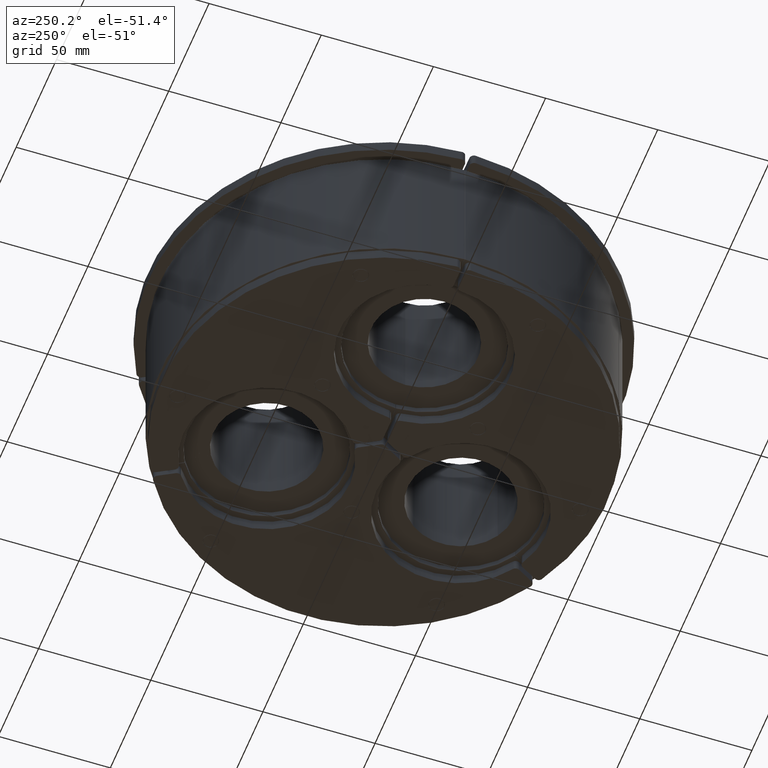
[diagram: clean part render]
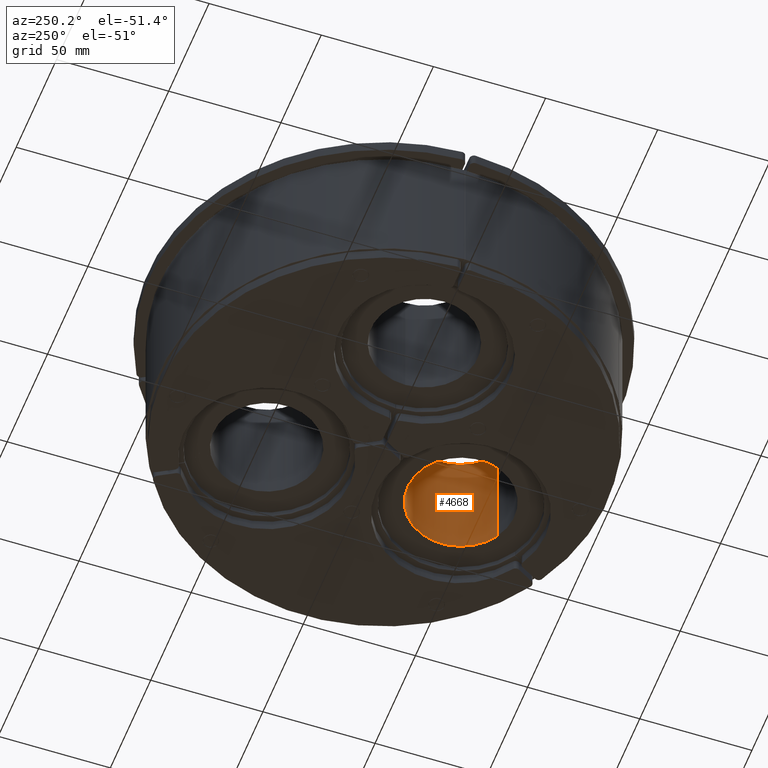
[diagram: same view with one face highlighted and labeled with its STEP entity id]
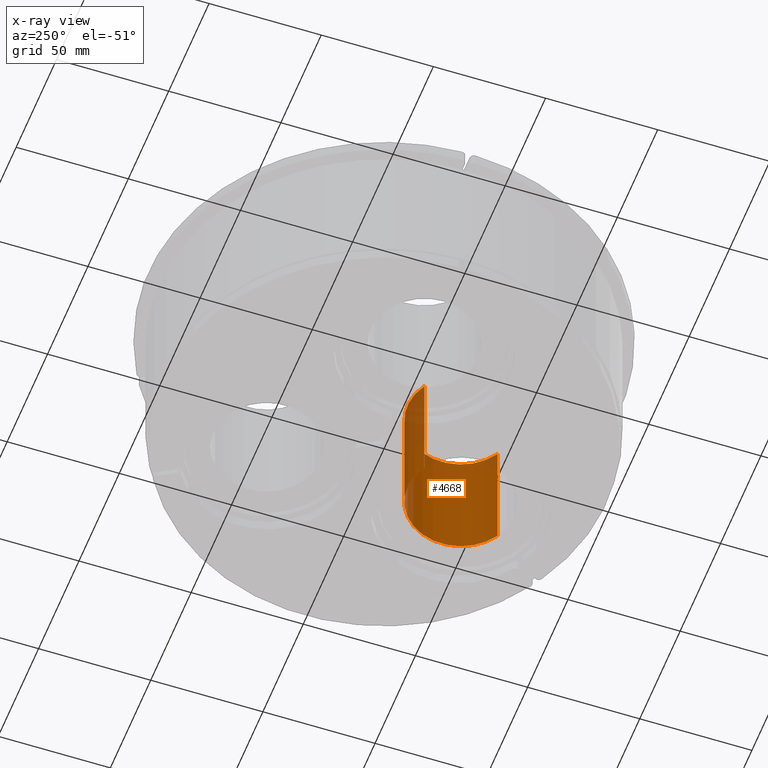
[diagram: x-ray of the same camera — body ghosted, the highlighted face saturated]
A machine part, auxiliary view. The second image highlights one B-rep face of the part: STEP entity #4668.
The next image is the same camera in x-ray: the body ghosted, the highlighted face saturated — about 15% of this face is hidden behind the body in this view.
In plain terms, the highlighted cylindrical surface (partial cylindrical patch) has radius 23.8 mm, axis along (-0, 0, 1).
Its self-contained STEP definition (entity closure, byte-faithful):
#4603=CARTESIAN_POINT('',(-23.800000000000004,2.914659E-015,55.0));
#4604=VERTEX_POINT('',#4603);
#4611=CARTESIAN_POINT('',(-23.800000000000004,2.914659E-015,0.0));
#4612=VERTEX_POINT('',#4611);
#4613=CARTESIAN_POINT('',(-23.800000000000004,2.914659E-015,0.0));
#4614=DIRECTION('',(0.0,0.0,1.0));
#4615=VECTOR('',#4614,55.0);
#4616=LINE('',#4613,#4615);
#4617=EDGE_CURVE('',#4612,#4604,#4616,.T.);
#4636=CARTESIAN_POINT('',(0.0,0.0,0.0));
#4637=DIRECTION('',(0.0,0.0,1.0));
#4638=DIRECTION('',(1.0,0.0,0.0));
#4639=AXIS2_PLACEMENT_3D('',#4636,#4637,#4638);
#4640=CYLINDRICAL_SURFACE('',#4639,23.800000000000004);
#4641=CARTESIAN_POINT('',(23.800000000000004,0.0,55.0));
#4642=VERTEX_POINT('',#4641);
#4643=CARTESIAN_POINT('',(0.0,0.0,55.0));
#4644=DIRECTION('',(0.0,0.0,1.0));
#4645=DIRECTION('',(1.0,0.0,0.0));
#4646=AXIS2_PLACEMENT_3D('',#4643,#4644,#4645);
#4647=CIRCLE('',#4646,23.800000000000004);
#4648=EDGE_CURVE('',#4604,#4642,#4647,.T.);
#4649=ORIENTED_EDGE('',*,*,#4648,.T.);
#4650=CARTESIAN_POINT('',(23.800000000000004,0.0,0.0));
#4651=VERTEX_POINT('',#4650);
#4652=CARTESIAN_POINT('',(23.800000000000004,0.0,0.0));
#4653=DIRECTION('',(0.0,0.0,1.0));
#4654=VECTOR('',#4653,55.0);
#4655=LINE('',#4652,#4654);
#4656=EDGE_CURVE('',#4651,#4642,#4655,.T.);
#4657=ORIENTED_EDGE('',*,*,#4656,.F.);
#4658=CARTESIAN_POINT('',(0.0,0.0,0.0));
#4659=DIRECTION('',(0.0,0.0,-1.0));
#4660=DIRECTION('',(1.0,0.0,0.0));
#4661=AXIS2_PLACEMENT_3D('',#4658,#4659,#4660);
#4662=CIRCLE('',#4661,23.800000000000004);
#4663=EDGE_CURVE('',#4651,#4612,#4662,.T.);
#4664=ORIENTED_EDGE('',*,*,#4663,.T.);
#4665=ORIENTED_EDGE('',*,*,#4617,.T.);
#4666=EDGE_LOOP('',(#4649,#4657,#4664,#4665));
#4667=FACE_OUTER_BOUND('',#4666,.T.);
#4668=ADVANCED_FACE('',(#4667),#4640,.F.);